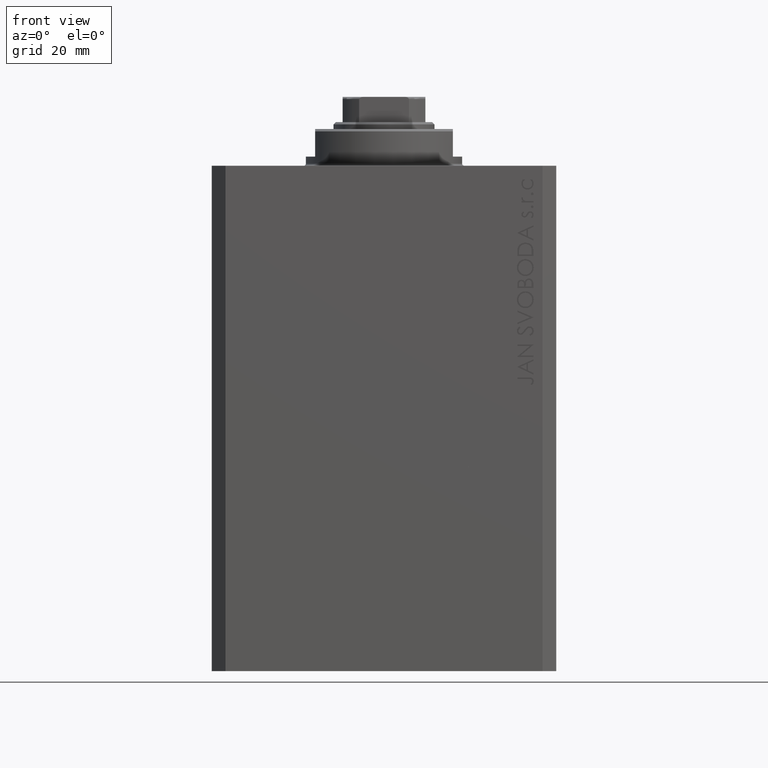
[diagram: clean part render]
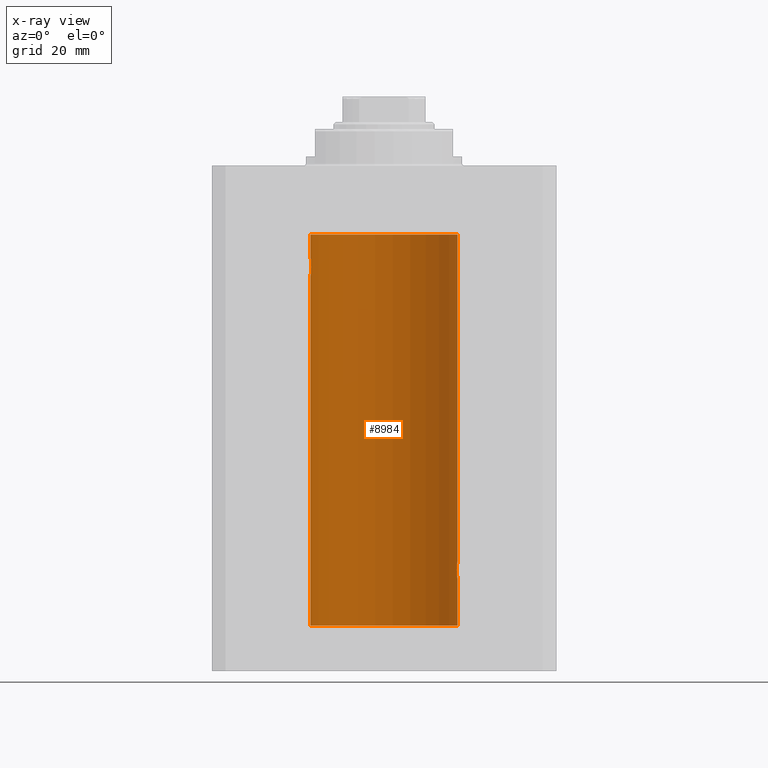
[diagram: x-ray — body ghosted, one internal face saturated and labeled with its STEP entity id]
A machine part, front view, then the same camera in x-ray: the body is ghosted and one INTERNAL B-rep face — a face not visible from any outside direction — is saturated and labeled: STEP entity #8984.
In plain terms, the highlighted cylindrical surface (partial cylindrical patch) has radius 16 mm, axis along (0, 0, 1).
Its self-contained STEP definition (entity closure, byte-faithful):
#297 = CARTESIAN_POINT ( 'NONE',  ( -15.99836091803360283, 0.2623312429553310565, -20.01299475991587329 ) ) ;
#532 = CARTESIAN_POINT ( 'NONE',  ( -15.99206840425678955, 0.5198215460038748681, -23.93569052926128649 ) ) ;
#1140 = ORIENTED_EDGE ( 'NONE', *, *, #31428, .T. ) ;
#1209 = ORIENTED_EDGE ( 'NONE', *, *, #43365, .F. ) ;
#1803 = CARTESIAN_POINT ( 'NONE',  ( 0.000000000000000000, 0.000000000000000000, -100.0999999999999943 ) ) ;
#2117 = CARTESIAN_POINT ( 'NONE',  ( 15.87450786638751055, 2.000000000000297984, -87.86943869497294202 ) ) ;
#3023 = CYLINDRICAL_SURFACE ( 'NONE', #42408, 16.00000000000000000 ) ;
#3071 = CARTESIAN_POINT ( 'NONE',  ( 16.00000000000000000, -2.738688404655786685E-23, -86.00000000000000000 ) ) ;
#3138 = B_SPLINE_CURVE_WITH_KNOTS ( 'NONE', 3,
 ( #16677, #2117, #46530, #20963, #9531, #31725, #13787, #28386, #46056, #24075, #24790, #35306, #38662, #20484, #46291, #35070, #13558, #3071 ),
 .UNSPECIFIED., .F., .F.,
 ( 4, 2, 2, 2, 2, 2, 2, 2, 4 ),
 ( 0.003130250677538718058, 0.003521348247420690372, 0.003912445817302662686, 0.004303543387184635000, 0.004694640957066607313, 0.005085738526948579627, 0.005476836096830552808, 0.005867933666712525122, 0.006259031236594497435 ),
 .UNSPECIFIED. ) ;
#3241 = AXIS2_PLACEMENT_3D ( 'NONE', #1803, #20625, #6080 ) ;
#3378 = CARTESIAN_POINT ( 'NONE',  ( -16.00000000000000000, 1.959434851239607631E-15, -23.99999999999999645 ) ) ;
#3614 = CARTESIAN_POINT ( 'NONE',  ( -15.98744362947834929, 0.6452446332038160870, -20.10241129944407490 ) ) ;
#3877 = LINE ( 'NONE', #33008, #4135 ) ;
#4102 = CARTESIAN_POINT ( 'NONE',  ( 15.99836014839681830, 0.2623923436743452187, -89.98699919334814012 ) ) ;
#4135 = VECTOR ( 'NONE', #34195, 1000.000000000000000 ) ;
#4337 = CARTESIAN_POINT ( 'NONE',  ( -15.92099550861380131, 1.598790766515155282, -20.77043888260214644 ) ) ;
#4823 = CARTESIAN_POINT ( 'NONE',  ( -16.00000000000000000, 8.139613661842072923E-16, -20.00000000000000000 ) ) ;
#5837 = CARTESIAN_POINT ( 'NONE',  ( 16.00000000000000000, 3.524002214059393877E-15, -90.00000000000000000 ) ) ;
#6080 = DIRECTION ( 'NONE',  ( 1.000000000000000000, 0.000000000000000000, 0.000000000000000000 ) ) ;
#6383 = DIRECTION ( 'NONE',  ( 1.000000000000000000, 0.000000000000000000, 0.000000000000000000 ) ) ;
#6963 = CARTESIAN_POINT ( 'NONE',  ( -15.96885838080210362, 1.003662148334370174, -23.73482670674955486 ) ) ;
#7445 = CARTESIAN_POINT ( 'NONE',  ( -15.95382484008323409, 1.219564485341772198, -20.40948495147901554 ) ) ;
#7679 = CARTESIAN_POINT ( 'NONE',  ( -15.88137861827787134, 1.947280337074169587, -21.47468243540596333 ) ) ;
#7919 = CARTESIAN_POINT ( 'NONE',  ( -15.99999999999999645, 0.1322838750249263340, -20.00000000000000000 ) ) ;
#8003 = DIRECTION ( 'NONE',  ( -0.000000000000000000, -0.000000000000000000, 1.000000000000000000 ) ) ;
#8452 = EDGE_LOOP ( 'NONE', ( #19022, #14649, #23180, #1140, #40562, #28140, #44876, #1209, #26056 ) ) ;
#8984 = ADVANCED_FACE ( 'NONE', ( #35731 ), #3023, .F. ) ;
#9337 = CARTESIAN_POINT ( 'NONE',  ( -16.00000000000000000, 1.959434878635765131E-15, -15.00000000000000000 ) ) ;
#9531 = CARTESIAN_POINT ( 'NONE',  ( 15.88712192135845491, 1.897869642555071179, -87.35557946728211220 ) ) ;
#10056 = DIRECTION ( 'NONE',  ( -0.000000000000000000, -0.000000000000000000, 1.000000000000000000 ) ) ;
#10818 = VECTOR ( 'NONE', #46554, 1000.000000000000000 ) ;
#11027 = CARTESIAN_POINT ( 'NONE',  ( -15.96895041604535770, 1.002241074716284874, -20.26431901501738153 ) ) ;
#11247 = CARTESIAN_POINT ( 'NONE',  ( -16.00000000000000000, 1.959434878635765131E-15, -100.0999999999999943 ) ) ;
#11633 = CIRCLE ( 'NONE', #3241, 16.00000000000000000 ) ;
#11952 = CARTESIAN_POINT ( 'NONE',  ( 15.87450786638750699, 2.000000000000297096, -88.00000000000000000 ) ) ;
#12029 = CARTESIAN_POINT ( 'NONE',  ( 16.00000000000000000, 0.000000000000000000, -100.0999999999999943 ) ) ;
#12650 = CARTESIAN_POINT ( 'NONE',  ( 15.92096875784782739, 1.599058044721133331, -89.22922593843965444 ) ) ;
#13351 = CARTESIAN_POINT ( 'NONE',  ( 15.88135773388169092, 1.947448446433282854, -88.52472455433247944 ) ) ;
#13558 = CARTESIAN_POINT ( 'NONE',  ( 16.00000000000000000, 0.1305637488590863926, -85.99999999999998579 ) ) ;
#13787 = CARTESIAN_POINT ( 'NONE',  ( 15.90582997788426312, 1.734897462761020082, -86.99646332855050446 ) ) ;
#14111 = CARTESIAN_POINT ( 'NONE',  ( -15.97583181162461052, 0.8874076679346778462, -20.20286585251778888 ) ) ;
#14649 = ORIENTED_EDGE ( 'NONE', *, *, #37541, .F. ) ;
#14830 = CARTESIAN_POINT ( 'NONE',  ( -15.95377581882983442, 1.220169175415122931, -23.59001528100121803 ) ) ;
#15074 = CARTESIAN_POINT ( 'NONE',  ( -15.87616016863256618, 1.987008272775798723, -22.26251583007899626 ) ) ;
#15082 = CARTESIAN_POINT ( 'NONE',  ( 15.99211620657850474, 0.5182628822511399225, -89.93608344894170159 ) ) ;
#15862 = B_SPLINE_CURVE_WITH_KNOTS ( 'NONE', 3,
 ( #22001, #7919, #297, #37057, #3614, #14111, #11027, #7445, #21521, #4337, #32982, #7679, #18403, #18164, #15074, #39691, #40398, #39926, #40631, #26066, #22234, #29182, #14830, #6963, #22474, #28703, #532, #43484, #36570, #3378 ),
 .UNSPECIFIED., .F., .F.,
 ( 4, 2, 2, 2, 2, 2, 2, 2, 2, 2, 2, 2, 2, 2, 4 ),
 ( 7.909002969168862706E-19, 0.0003911894522871180884, 0.0007823789045742353095, 0.001173568356861352802, 0.001564757809148469968, 0.002347136713722698664, 0.003129515618296926493, 0.003520705070584046262, 0.003911894522871165597, 0.004303083975158284932, 0.004694273427445404268, 0.005085462879732523603, 0.005476652332019642938, 0.005867841784306762273, 0.006259031236593881609 ),
 .UNSPECIFIED. ) ;
#15968 = VERTEX_POINT ( 'NONE', #5837 ) ;
#16677 = CARTESIAN_POINT ( 'NONE',  ( 15.87450786638750699, 2.000000000000297096, -88.00000000000000000 ) ) ;
#16927 = CARTESIAN_POINT ( 'NONE',  ( 15.94550883254178331, 1.322613426523511881, -89.50588495029012392 ) ) ;
#17306 = EDGE_CURVE ( 'NONE', #18328, #35027, #15862, .T. ) ;
#17524 = VERTEX_POINT ( 'NONE', #11952 ) ;
#17714 = CARTESIAN_POINT ( 'NONE',  ( 16.00000000000000000, -2.738688404655786685E-23, -86.00000000000000000 ) ) ;
#18164 = CARTESIAN_POINT ( 'NONE',  ( -15.87450182760079542, 2.000047931387149092, -22.12985308350499380 ) ) ;
#18328 = VERTEX_POINT ( 'NONE', #4823 ) ;
#18403 = CARTESIAN_POINT ( 'NONE',  ( -15.87451999516785506, 1.999903730784163169, -21.73808537237744432 ) ) ;
#18807 = EDGE_CURVE ( 'NONE', #19509, #24734, #22761, .T. ) ;
#18886 = CARTESIAN_POINT ( 'NONE',  ( 15.95380611548778660, 1.219810915946573759, -89.59032870701324214 ) ) ;
#18900 = B_SPLINE_CURVE_WITH_KNOTS ( 'NONE', 3,
 ( #22241, #36816, #4102, #15082, #29660, #44215, #26073, #18886, #16927, #12650, #45619, #13351, #35331, #41790 ),
 .UNSPECIFIED., .F., .F.,
 ( 4, 2, 2, 2, 2, 2, 4 ),
 ( 3.424160547694500162E-18, 0.0003912813346923356916, 0.0007825626693846680221, 0.001173844004077000082, 0.001565125338769331924, 0.002347688008154024883, 0.003130250677538718058 ),
 .UNSPECIFIED. ) ;
#19022 = ORIENTED_EDGE ( 'NONE', *, *, #31577, .F. ) ;
#19509 = VERTEX_POINT ( 'NONE', #27653 ) ;
#20484 = CARTESIAN_POINT ( 'NONE',  ( 15.98747899434752817, 0.6443623600228916004, -86.10211550510818768 ) ) ;
#20544 = LINE ( 'NONE', #39196, #29270 ) ;
#20625 = DIRECTION ( 'NONE',  ( 0.000000000000000000, 0.000000000000000000, 1.000000000000000000 ) ) ;
#20963 = CARTESIAN_POINT ( 'NONE',  ( 15.88249567060696243, 1.935716055827872539, -87.48027816021618719 ) ) ;
#21521 = CARTESIAN_POINT ( 'NONE',  ( -15.94553003295877680, 1.322357532253827461, -20.49389287531754889 ) ) ;
#22001 = CARTESIAN_POINT ( 'NONE',  ( -16.00000000000000000, 8.139613661842072923E-16, -20.00000000000000000 ) ) ;
#22234 = CARTESIAN_POINT ( 'NONE',  ( -15.92908549642226745, 1.507649250492136606, -23.32075824828932653 ) ) ;
#22241 = CARTESIAN_POINT ( 'NONE',  ( 16.00000000000000000, 3.524002214059393877E-15, -90.00000000000000000 ) ) ;
#22474 = CARTESIAN_POINT ( 'NONE',  ( -15.97587307151818159, 0.8866640484200133399, -23.79749928605040665 ) ) ;
#22557 = LINE ( 'NONE', #12029, #45188 ) ;
#22761 = CIRCLE ( 'NONE', #34183, 16.00000000000000000 ) ;
#23180 = ORIENTED_EDGE ( 'NONE', *, *, #41597, .T. ) ;
#24075 = CARTESIAN_POINT ( 'NONE',  ( 15.94566414814287469, 1.320819617421907788, -86.49240758272487994 ) ) ;
#24734 = VERTEX_POINT ( 'NONE', #9337 ) ;
#24790 = CARTESIAN_POINT ( 'NONE',  ( 15.95379436193629985, 1.219925354616377966, -86.40980009844315646 ) ) ;
#24981 = DIRECTION ( 'NONE',  ( 1.000000000000000000, 0.000000000000000000, 0.000000000000000000 ) ) ;
#26056 = ORIENTED_EDGE ( 'NONE', *, *, #17306, .T. ) ;
#26066 = CARTESIAN_POINT ( 'NONE',  ( -15.92092783521423272, 1.590393755196006786, -23.21967657442277755 ) ) ;
#26073 = CARTESIAN_POINT ( 'NONE',  ( 15.96893716441426214, 1.002454028984434808, -89.73556042441214231 ) ) ;
#27010 = CARTESIAN_POINT ( 'NONE',  ( 16.00000000000000000, 0.000000000000000000, -100.0999999999999943 ) ) ;
#27173 = EDGE_CURVE ( 'NONE', #17524, #35651, #3138, .T. ) ;
#27653 = CARTESIAN_POINT ( 'NONE',  ( 16.00000000000000000, 0.000000000000000000, -15.00000000000000000 ) ) ;
#27882 = CARTESIAN_POINT ( 'NONE',  ( 0.000000000000000000, 0.000000000000000000, -15.00000000000000000 ) ) ;
#28140 = ORIENTED_EDGE ( 'NONE', *, *, #34090, .T. ) ;
#28168 = CARTESIAN_POINT ( 'NONE',  ( -16.00000000000000000, 1.959434878635765131E-15, -100.0999999999999943 ) ) ;
#28386 = CARTESIAN_POINT ( 'NONE',  ( 15.92095407913750726, 1.590131347295332009, -86.77998469042918828 ) ) ;
#28580 = CARTESIAN_POINT ( 'NONE',  ( 0.000000000000000000, 0.000000000000000000, -100.0999999999999943 ) ) ;
#28703 = CARTESIAN_POINT ( 'NONE',  ( -15.98747331501412461, 0.6445079780200578812, -23.89783726498894723 ) ) ;
#29182 = CARTESIAN_POINT ( 'NONE',  ( -15.94564302722881877, 1.321075116345886924, -23.50737160312428742 ) ) ;
#29270 = VECTOR ( 'NONE', #10056, 1000.000000000000000 ) ;
#29645 = VERTEX_POINT ( 'NONE', #11247 ) ;
#29660 = CARTESIAN_POINT ( 'NONE',  ( 15.98743782203464825, 0.6453927552190293904, -89.89754035852679692 ) ) ;
#31428 = EDGE_CURVE ( 'NONE', #15968, #17524, #18900, .T. ) ;
#31577 = EDGE_CURVE ( 'NONE', #29645, #35027, #35571, .T. ) ;
#31725 = CARTESIAN_POINT ( 'NONE',  ( 15.89878974374255449, 1.797508500259969777, -87.11334888788564967 ) ) ;
#32982 = CARTESIAN_POINT ( 'NONE',  ( -15.90457341008072412, 1.747750603376305278, -20.99340818440418488 ) ) ;
#33008 = CARTESIAN_POINT ( 'NONE',  ( -16.00000000000000000, 1.959434878635765131E-15, -100.0999999999999943 ) ) ;
#34090 = EDGE_CURVE ( 'NONE', #35651, #19509, #22557, .T. ) ;
#34183 = AXIS2_PLACEMENT_3D ( 'NONE', #27882, #42191, #6383 ) ;
#34195 = DIRECTION ( 'NONE',  ( -0.000000000000000000, -0.000000000000000000, 1.000000000000000000 ) ) ;
#35027 = VERTEX_POINT ( 'NONE', #37938 ) ;
#35070 = CARTESIAN_POINT ( 'NONE',  ( 15.99834953062734222, 0.2631943783489354982, -86.01308452963878892 ) ) ;
#35306 = CARTESIAN_POINT ( 'NONE',  ( 15.96887171920781689, 1.003448269354837441, -86.26505182542071282 ) ) ;
#35331 = CARTESIAN_POINT ( 'NONE',  ( 15.87450786638751410, 2.000000000000297096, -88.26124530359815878 ) ) ;
#35571 = LINE ( 'NONE', #28168, #10818 ) ;
#35651 = VERTEX_POINT ( 'NONE', #17714 ) ;
#35731 = FACE_OUTER_BOUND ( 'NONE', #8452, .T. ) ;
#36570 = CARTESIAN_POINT ( 'NONE',  ( -16.00000000000000000, 0.1305944228192325030, -23.99999999999999645 ) ) ;
#36816 = CARTESIAN_POINT ( 'NONE',  ( 15.99999999999999645, 0.1323149458028788361, -90.00000000000002842 ) ) ;
#37057 = CARTESIAN_POINT ( 'NONE',  ( -15.99211983514074298, 0.5181437283162074747, -20.06388673317935911 ) ) ;
#37541 = EDGE_CURVE ( 'NONE', #38086, #29645, #11633, .T. ) ;
#37938 = CARTESIAN_POINT ( 'NONE',  ( -16.00000000000000000, 1.959434851239607631E-15, -23.99999999999999645 ) ) ;
#38086 = VERTEX_POINT ( 'NONE', #27010 ) ;
#38662 = CARTESIAN_POINT ( 'NONE',  ( 15.97588373855009536, 0.8864683965309503311, -86.20240655627672766 ) ) ;
#39196 = CARTESIAN_POINT ( 'NONE',  ( 16.00000000000000000, 0.000000000000000000, -100.0999999999999943 ) ) ;
#39691 = CARTESIAN_POINT ( 'NONE',  ( -15.88247600692092831, 1.935876924222084350, -22.51913097710111700 ) ) ;
#39926 = CARTESIAN_POINT ( 'NONE',  ( -15.89876304682112362, 1.797743958659264507, -22.88617757057269841 ) ) ;
#40398 = CARTESIAN_POINT ( 'NONE',  ( -15.88709929148890510, 1.898058445420892637, -22.64386968033013403 ) ) ;
#40562 = ORIENTED_EDGE ( 'NONE', *, *, #27173, .T. ) ;
#40631 = CARTESIAN_POINT ( 'NONE',  ( -15.90580292899658055, 1.735145127817749655, -23.00311247035039486 ) ) ;
#41597 = EDGE_CURVE ( 'NONE', #38086, #15968, #20544, .T. ) ;
#41790 = CARTESIAN_POINT ( 'NONE',  ( 15.87450786638750699, 2.000000000000297096, -88.00000000000000000 ) ) ;
#42191 = DIRECTION ( 'NONE',  ( 0.000000000000000000, 0.000000000000000000, 1.000000000000000000 ) ) ;
#42408 = AXIS2_PLACEMENT_3D ( 'NONE', #28580, #43116, #24981 ) ;
#43116 = DIRECTION ( 'NONE',  ( -0.000000000000000000, -0.000000000000000000, 1.000000000000000000 ) ) ;
#43365 = EDGE_CURVE ( 'NONE', #18328, #24734, #3877, .T. ) ;
#43484 = CARTESIAN_POINT ( 'NONE',  ( -15.99834873924246104, 0.2632563459770838055, -23.98690924832126115 ) ) ;
#44215 = CARTESIAN_POINT ( 'NONE',  ( 15.97582125337101999, 0.8876008124445644576, -89.79704090617748591 ) ) ;
#44876 = ORIENTED_EDGE ( 'NONE', *, *, #18807, .T. ) ;
#45188 = VECTOR ( 'NONE', #8003, 1000.000000000000000 ) ;
#45619 = CARTESIAN_POINT ( 'NONE',  ( 15.90454527605181667, 1.748004143318092174, -89.00616739381551668 ) ) ;
#46056 = CARTESIAN_POINT ( 'NONE',  ( 15.92911104305801828, 1.507378839264603476, -86.67893664295412748 ) ) ;
#46291 = CARTESIAN_POINT ( 'NONE',  ( 15.99207203775707065, 0.5197027266689088210, -86.06427960618061945 ) ) ;
#46530 = CARTESIAN_POINT ( 'NONE',  ( 15.87617168140110380, 1.986916736633999037, -87.73680934434936773 ) ) ;
#46554 = DIRECTION ( 'NONE',  ( -0.000000000000000000, -0.000000000000000000, 1.000000000000000000 ) ) ;